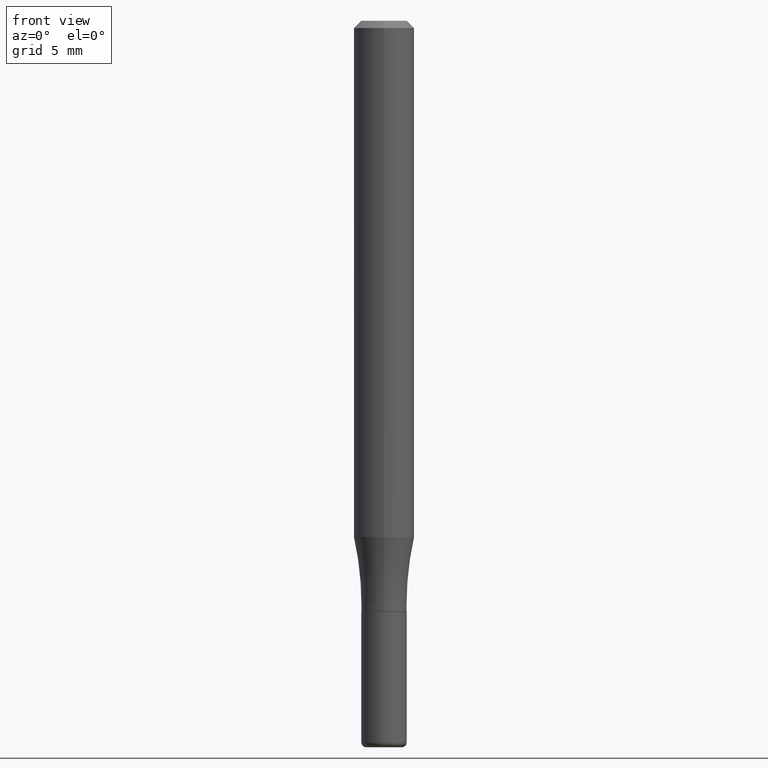
[diagram: clean part render]
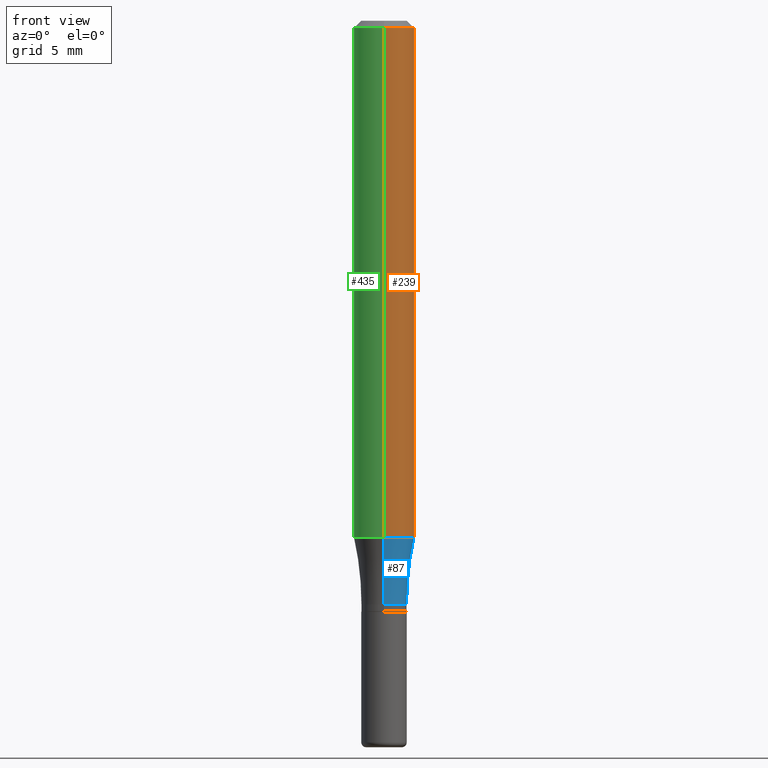
[diagram: same view with three faces highlighted in distinct colors, each labeled with its STEP entity id]
A machine part, front view with three faces highlighted in distinct colors.
Their STEP definitions:

[orange] entity #239 — the highlighted cylindrical surface (edge-blend (fillet) strip) has radius 1.5875 mm, axis along (-0, 0, 1).
#5 = CIRCLE ( 'NONE', #297, 0.06250000000000001388 ) ;
#13 = VECTOR ( 'NONE', #118, 39.37007874015748143 ) ;
#14 = EDGE_CURVE ( 'NONE', #248, #496, #503, .T. ) ;
#24 = ORIENTED_EDGE ( 'NONE', *, *, #402, .T. ) ;
#45 = DIRECTION ( 'NONE',  ( -2.446042075129880699E-29, 3.490660385085830172E-15, 1.000000000000000000 ) ) ;
#50 = VECTOR ( 'NONE', #54, 39.37007874015748143 ) ;
#54 = DIRECTION ( 'NONE',  ( -2.446042075129880419E-29, 3.490660385085830172E-15, 1.000000000000000000 ) ) ;
#73 = DIRECTION ( 'NONE',  ( -2.446042075129880699E-29, 3.490660385085830172E-15, 1.000000000000000000 ) ) ;
#94 = ORIENTED_EDGE ( 'NONE', *, *, #334, .F. ) ;
#111 = CARTESIAN_POINT ( 'NONE',  ( 3.669063112694748373E-31, -5.235990577628641967E-17, -0.01499999999999970281 ) ) ;
#118 = DIRECTION ( 'NONE',  ( -2.446042075129880419E-29, 3.490660385085830172E-15, 1.000000000000000000 ) ) ;
#125 = CARTESIAN_POINT ( 'NONE',  ( 2.608047609598831020E-29, -3.721852770157700213E-15, -1.066231703908996797 ) ) ;
#158 = VERTEX_POINT ( 'NONE', #420 ) ;
#184 = EDGE_LOOP ( 'NONE', ( #24, #192, #94, #412 ) ) ;
#186 = AXIS2_PLACEMENT_3D ( 'NONE', #111, #73, #238 ) ;
#188 = DIRECTION ( 'NONE',  ( -6.982962677686265133E-15, -1.000000000000000000, 3.490660385085829778E-15 ) ) ;
#189 = CARTESIAN_POINT ( 'NONE',  ( -4.364351673553649961E-16, -0.06250000000000369149, -1.066231703908996575 ) ) ;
#191 = CARTESIAN_POINT ( 'NONE',  ( 0.000000000000000000, 0.000000000000000000, 0.000000000000000000 ) ) ;
#192 = ORIENTED_EDGE ( 'NONE', *, *, #223, .T. ) ;
#199 = DIRECTION ( 'NONE',  ( -6.982962677686265922E-15, -1.000000000000000000, 4.370956789862820361E-15 ) ) ;
#216 = CARTESIAN_POINT ( 'NONE',  ( -4.364351673553916694E-16, -0.06250000000000001388, 2.181662740678644104E-16 ) ) ;
#223 = EDGE_CURVE ( 'NONE', #225, #158, #510, .T. ) ;
#225 = VERTEX_POINT ( 'NONE', #514 ) ;
#238 = DIRECTION ( 'NONE',  ( -6.982962677686265922E-15, -1.000000000000000000, 3.483106191921935554E-15 ) ) ;
#239 = ADVANCED_FACE ( 'NONE', ( #322 ), #400, .T. ) ;
#241 = CARTESIAN_POINT ( 'NONE',  ( -4.287811248607203282E-16, -0.06250000000000005551, -0.01499999999999948597 ) ) ;
#245 = AXIS2_PLACEMENT_3D ( 'NONE', #191, #272, #188 ) ;
#248 = VERTEX_POINT ( 'NONE', #189 ) ;
#272 = DIRECTION ( 'NONE',  ( -2.446042075129880699E-29, 3.490660385085830172E-15, 1.000000000000000000 ) ) ;
#297 = AXIS2_PLACEMENT_3D ( 'NONE', #125, #45, #199 ) ;
#322 = FACE_OUTER_BOUND ( 'NONE', #184, .T. ) ;
#324 = CIRCLE ( 'NONE', #186, 0.06250000000000000000 ) ;
#334 = EDGE_CURVE ( 'NONE', #496, #158, #324, .T. ) ;
#400 = CYLINDRICAL_SURFACE ( 'NONE', #245, 0.06250000000000001388 ) ;
#402 = EDGE_CURVE ( 'NONE', #248, #225, #5, .T. ) ;
#412 = ORIENTED_EDGE ( 'NONE', *, *, #14, .F. ) ;
#420 = CARTESIAN_POINT ( 'NONE',  ( 4.364351673553919652E-16, 0.06249999999999995143, -0.01499999999999992138 ) ) ;
#437 = CARTESIAN_POINT ( 'NONE',  ( 4.440892098500626162E-16, 0.06250000000000001388, -2.181662740678644104E-16 ) ) ;
#496 = VERTEX_POINT ( 'NONE', #241 ) ;
#503 = LINE ( 'NONE', #216, #50 ) ;
#510 = LINE ( 'NONE', #437, #13 ) ;
#514 = CARTESIAN_POINT ( 'NONE',  ( 4.440892098500884514E-16, 0.06249999999999630851, -1.066231703908997241 ) ) ;

[blue] entity #87 — the highlighted toroidal blend (fillet) surface has major radius 17.0663 mm and minor (blend) radius 15.875 mm.
#5 = CIRCLE ( 'NONE', #297, 0.06250000000000001388 ) ;
#18 = CARTESIAN_POINT ( 'NONE',  ( 2.946789911453088792E-29, -4.207235013305989262E-15, -1.204999999999999627 ) ) ;
#23 = DIRECTION ( 'NONE',  ( -2.446042075129880699E-29, 3.490660385085830172E-15, 1.000000000000000000 ) ) ;
#25 = CIRCLE ( 'NONE', #358, 0.04689999999999984459 ) ;
#28 = DIRECTION ( 'NONE',  ( -6.982962677686265133E-15, -1.000000000000000000, 3.490660385085830567E-15 ) ) ;
#30 = EDGE_CURVE ( 'NONE', #299, #377, #25, .T. ) ;
#31 = DIRECTION ( 'NONE',  ( -2.446042075129880699E-29, 3.490660385085830172E-15, 1.000000000000000000 ) ) ;
#44 = DIRECTION ( 'NONE',  ( -6.982962677686268288E-15, -1.000000000000000000, 0.000000000000000000 ) ) ;
#45 = DIRECTION ( 'NONE',  ( -2.446042075129880699E-29, 3.490660385085830172E-15, 1.000000000000000000 ) ) ;
#68 = ORIENTED_EDGE ( 'NONE', *, *, #402, .F. ) ;
#81 = DIRECTION ( 'NONE',  ( -1.000000000000000000, 6.982962677686265922E-15, -4.883557194083112901E-29 ) ) ;
#87 = ADVANCED_FACE ( 'NONE', ( #210 ), #193, .F. ) ;
#125 = CARTESIAN_POINT ( 'NONE',  ( 2.608047609598831020E-29, -3.721852770157700213E-15, -1.066231703908996797 ) ) ;
#143 = ORIENTED_EDGE ( 'NONE', *, *, #255, .F. ) ;
#150 = AXIS2_PLACEMENT_3D ( 'NONE', #480, #354, #316 ) ;
#177 = ORIENTED_EDGE ( 'NONE', *, *, #304, .T. ) ;
#189 = CARTESIAN_POINT ( 'NONE',  ( -4.364351673553649961E-16, -0.06250000000000369149, -1.066231703908996575 ) ) ;
#193 = TOROIDAL_SURFACE ( 'NONE', #492, 0.6718999999999998307, 0.6250000000000000000 ) ;
#196 = EDGE_LOOP ( 'NONE', ( #143, #68, #177, #421 ) ) ;
#199 = DIRECTION ( 'NONE',  ( -6.982962677686265922E-15, -1.000000000000000000, 4.370956789862820361E-15 ) ) ;
#210 = FACE_OUTER_BOUND ( 'NONE', #196, .T. ) ;
#225 = VERTEX_POINT ( 'NONE', #514 ) ;
#229 = CARTESIAN_POINT ( 'NONE',  ( -3.275009495834553341E-16, -0.04690000000000405650, -1.204999999999999627 ) ) ;
#248 = VERTEX_POINT ( 'NONE', #189 ) ;
#255 = EDGE_CURVE ( 'NONE', #225, #377, #375, .T. ) ;
#288 = AXIS2_PLACEMENT_3D ( 'NONE', #313, #81, #44 ) ;
#297 = AXIS2_PLACEMENT_3D ( 'NONE', #125, #45, #199 ) ;
#299 = VERTEX_POINT ( 'NONE', #229 ) ;
#304 = EDGE_CURVE ( 'NONE', #248, #299, #484, .T. ) ;
#313 = CARTESIAN_POINT ( 'NONE',  ( -4.691852623137371831E-15, -0.6719000000000041606, -1.204999999999997407 ) ) ;
#316 = DIRECTION ( 'NONE',  ( 7.105427357601001859E-15, 1.000000000000000000, 0.000000000000000000 ) ) ;
#343 = CARTESIAN_POINT ( 'NONE',  ( 2.947480700531505554E-29, -4.206245764028424746E-15, -1.204999999999999849 ) ) ;
#354 = DIRECTION ( 'NONE',  ( 1.000000000000000000, -7.105427357601001070E-15, 4.926305454758171006E-29 ) ) ;
#358 = AXIS2_PLACEMENT_3D ( 'NONE', #343, #31, #386 ) ;
#375 = CIRCLE ( 'NONE', #150, 0.6250000000000000000 ) ;
#377 = VERTEX_POINT ( 'NONE', #407 ) ;
#386 = DIRECTION ( 'NONE',  ( -6.982962677686266711E-15, -1.000000000000000000, 2.912417903693253965E-15 ) ) ;
#402 = EDGE_CURVE ( 'NONE', #248, #225, #5, .T. ) ;
#407 = CARTESIAN_POINT ( 'NONE',  ( 3.886668764608021062E-16, 0.04689999999999563962, -1.205000000000000071 ) ) ;
#421 = ORIENTED_EDGE ( 'NONE', *, *, #30, .T. ) ;
#480 = CARTESIAN_POINT ( 'NONE',  ( 4.774136641572140345E-15, 0.6718999999999956119, -1.205000000000002069 ) ) ;
#484 = CIRCLE ( 'NONE', #288, 0.6250000000000000000 ) ;
#492 = AXIS2_PLACEMENT_3D ( 'NONE', #18, #23, #28 ) ;
#514 = CARTESIAN_POINT ( 'NONE',  ( 4.440892098500884514E-16, 0.06249999999999630851, -1.066231703908997241 ) ) ;

[green] entity #435 — the highlighted cylindrical surface (edge-blend (fillet) strip) has radius 1.5875 mm, axis along (-0, 0, 1).
#2 = DIRECTION ( 'NONE',  ( -2.446042075129880699E-29, 3.490660385085830172E-15, 1.000000000000000000 ) ) ;
#13 = VECTOR ( 'NONE', #118, 39.37007874015748143 ) ;
#14 = EDGE_CURVE ( 'NONE', #248, #496, #503, .T. ) ;
#34 = DIRECTION ( 'NONE',  ( -2.446042075129880699E-29, 3.490660385085830172E-15, 1.000000000000000000 ) ) ;
#50 = VECTOR ( 'NONE', #54, 39.37007874015748143 ) ;
#54 = DIRECTION ( 'NONE',  ( -2.446042075129880419E-29, 3.490660385085830172E-15, 1.000000000000000000 ) ) ;
#75 = ORIENTED_EDGE ( 'NONE', *, *, #432, .T. ) ;
#102 = ORIENTED_EDGE ( 'NONE', *, *, #152, .F. ) ;
#117 = ORIENTED_EDGE ( 'NONE', *, *, #223, .F. ) ;
#118 = DIRECTION ( 'NONE',  ( -2.446042075129880419E-29, 3.490660385085830172E-15, 1.000000000000000000 ) ) ;
#152 = EDGE_CURVE ( 'NONE', #158, #496, #318, .T. ) ;
#158 = VERTEX_POINT ( 'NONE', #420 ) ;
#163 = DIRECTION ( 'NONE',  ( -6.982962677686265133E-15, -1.000000000000000000, 3.490660385085829778E-15 ) ) ;
#165 = DIRECTION ( 'NONE',  ( -6.982962677686265922E-15, -1.000000000000000000, 4.370956789862820361E-15 ) ) ;
#176 = DIRECTION ( 'NONE',  ( -6.982962677686265922E-15, -1.000000000000000000, 3.483106191921935554E-15 ) ) ;
#189 = CARTESIAN_POINT ( 'NONE',  ( -4.364351673553649961E-16, -0.06250000000000369149, -1.066231703908996575 ) ) ;
#202 = CYLINDRICAL_SURFACE ( 'NONE', #469, 0.06250000000000001388 ) ;
#216 = CARTESIAN_POINT ( 'NONE',  ( -4.364351673553916694E-16, -0.06250000000000001388, 2.181662740678644104E-16 ) ) ;
#223 = EDGE_CURVE ( 'NONE', #225, #158, #510, .T. ) ;
#225 = VERTEX_POINT ( 'NONE', #514 ) ;
#228 = ORIENTED_EDGE ( 'NONE', *, *, #14, .T. ) ;
#241 = CARTESIAN_POINT ( 'NONE',  ( -4.287811248607203282E-16, -0.06250000000000005551, -0.01499999999999948597 ) ) ;
#248 = VERTEX_POINT ( 'NONE', #189 ) ;
#268 = CARTESIAN_POINT ( 'NONE',  ( 3.669063112694748373E-31, -5.235990577628641967E-17, -0.01499999999999970281 ) ) ;
#310 = EDGE_LOOP ( 'NONE', ( #117, #75, #228, #102 ) ) ;
#318 = CIRCLE ( 'NONE', #443, 0.06250000000000000000 ) ;
#330 = CARTESIAN_POINT ( 'NONE',  ( 0.000000000000000000, 0.000000000000000000, 0.000000000000000000 ) ) ;
#362 = CARTESIAN_POINT ( 'NONE',  ( 2.608047609598831020E-29, -3.721852770157700213E-15, -1.066231703908996797 ) ) ;
#366 = CIRCLE ( 'NONE', #497, 0.06250000000000001388 ) ;
#409 = FACE_OUTER_BOUND ( 'NONE', #310, .T. ) ;
#420 = CARTESIAN_POINT ( 'NONE',  ( 4.364351673553919652E-16, 0.06249999999999995143, -0.01499999999999992138 ) ) ;
#432 = EDGE_CURVE ( 'NONE', #225, #248, #366, .T. ) ;
#435 = ADVANCED_FACE ( 'NONE', ( #409 ), #202, .T. ) ;
#437 = CARTESIAN_POINT ( 'NONE',  ( 4.440892098500626162E-16, 0.06250000000000001388, -2.181662740678644104E-16 ) ) ;
#443 = AXIS2_PLACEMENT_3D ( 'NONE', #268, #34, #176 ) ;
#448 = DIRECTION ( 'NONE',  ( -2.446042075129880699E-29, 3.490660385085830172E-15, 1.000000000000000000 ) ) ;
#469 = AXIS2_PLACEMENT_3D ( 'NONE', #330, #448, #163 ) ;
#496 = VERTEX_POINT ( 'NONE', #241 ) ;
#497 = AXIS2_PLACEMENT_3D ( 'NONE', #362, #2, #165 ) ;
#503 = LINE ( 'NONE', #216, #50 ) ;
#510 = LINE ( 'NONE', #437, #13 ) ;
#514 = CARTESIAN_POINT ( 'NONE',  ( 4.440892098500884514E-16, 0.06249999999999630851, -1.066231703908997241 ) ) ;